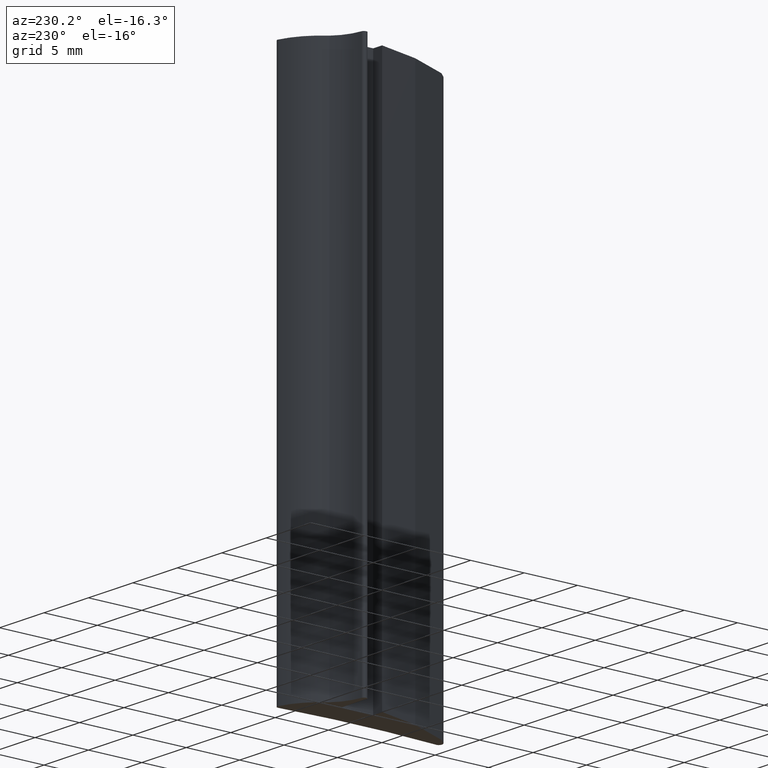
[diagram: clean part render]
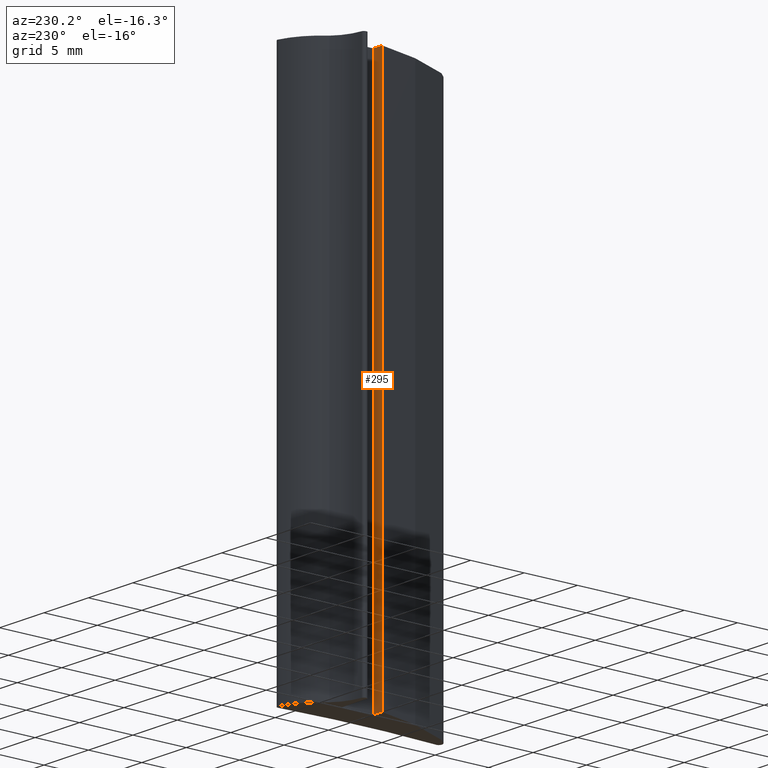
[diagram: same view with one face highlighted and labeled with its STEP entity id]
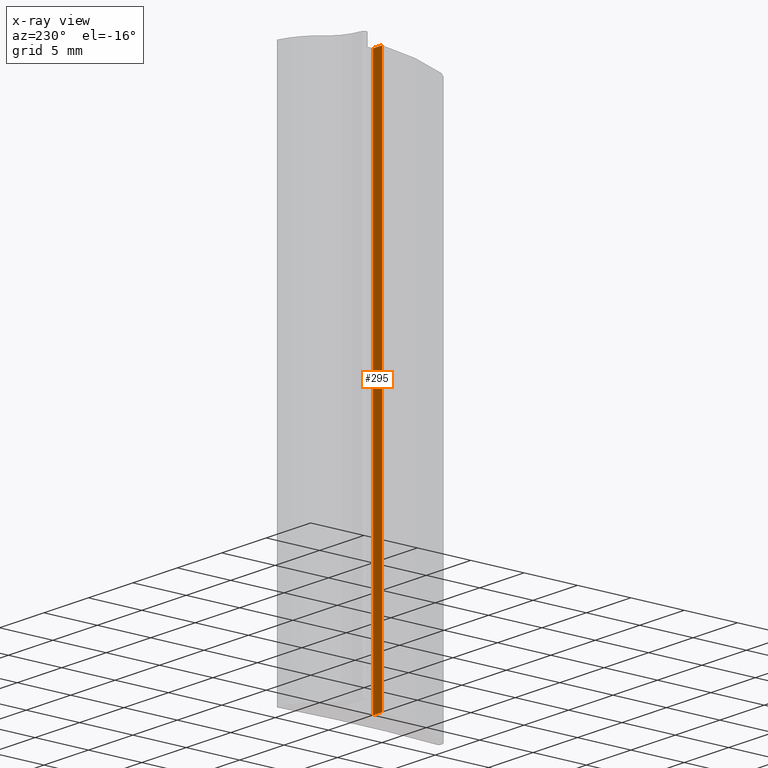
[diagram: x-ray of the same camera — body ghosted, the highlighted face saturated]
A machine part, auxiliary view. The second image highlights one B-rep face of the part: STEP entity #295.
The next image is the same camera in x-ray: the body ghosted, the highlighted face saturated — about 0% of this face is hidden behind the body in this view.
In plain terms, the highlighted planar face has unit normal (0, 1, 0).
Its self-contained STEP definition (entity closure, byte-faithful):
#239=CARTESIAN_POINT('',(-2.965201671713658,8.287572930124952,0.0));
#240=VERTEX_POINT('',#239);
#247=CARTESIAN_POINT('',(-2.965201671713658,8.287572930124952,50.0));
#248=VERTEX_POINT('',#247);
#249=CARTESIAN_POINT('',(-2.965201671713658,8.287572930124952,0.0));
#250=DIRECTION('',(0.0,0.0,1.0));
#251=VECTOR('',#250,50.0);
#252=LINE('',#249,#251);
#253=EDGE_CURVE('',#240,#248,#252,.T.);
#265=CARTESIAN_POINT('',(-2.965201671713658,8.287572930124952,0.0));
#266=DIRECTION('',(0.0,1.0,0.0));
#267=DIRECTION('',(-1.0,0.0,0.0));
#268=AXIS2_PLACEMENT_3D('',#265,#266,#267);
#269=PLANE('',#268);
#270=CARTESIAN_POINT('',(-3.965201449709184,8.287572930124952,0.0));
#271=VERTEX_POINT('',#270);
#272=CARTESIAN_POINT('',(-2.965201671713658,8.287572930124952,0.0));
#273=DIRECTION('',(-1.0,0.0,0.0));
#274=VECTOR('',#273,0.999999777995598);
#275=LINE('',#272,#274);
#276=EDGE_CURVE('',#240,#271,#275,.T.);
#277=ORIENTED_EDGE('',*,*,#276,.T.);
#278=CARTESIAN_POINT('',(-3.965201449709184,8.287572930124952,50.0));
#279=VERTEX_POINT('',#278);
#280=CARTESIAN_POINT('',(-3.965201449709184,8.287572930124952,0.0));
#281=DIRECTION('',(0.0,0.0,1.0));
#282=VECTOR('',#281,50.0);
#283=LINE('',#280,#282);
#284=EDGE_CURVE('',#271,#279,#283,.T.);
#285=ORIENTED_EDGE('',*,*,#284,.T.);
#286=CARTESIAN_POINT('',(-2.965201671713658,8.287572930124952,50.0));
#287=DIRECTION('',(-1.0,0.0,0.0));
#288=VECTOR('',#287,0.999999777995598);
#289=LINE('',#286,#288);
#290=EDGE_CURVE('',#248,#279,#289,.T.);
#291=ORIENTED_EDGE('',*,*,#290,.F.);
#292=ORIENTED_EDGE('',*,*,#253,.F.);
#293=EDGE_LOOP('',(#277,#285,#291,#292));
#294=FACE_OUTER_BOUND('',#293,.T.);
#295=ADVANCED_FACE('',(#294),#269,.T.);